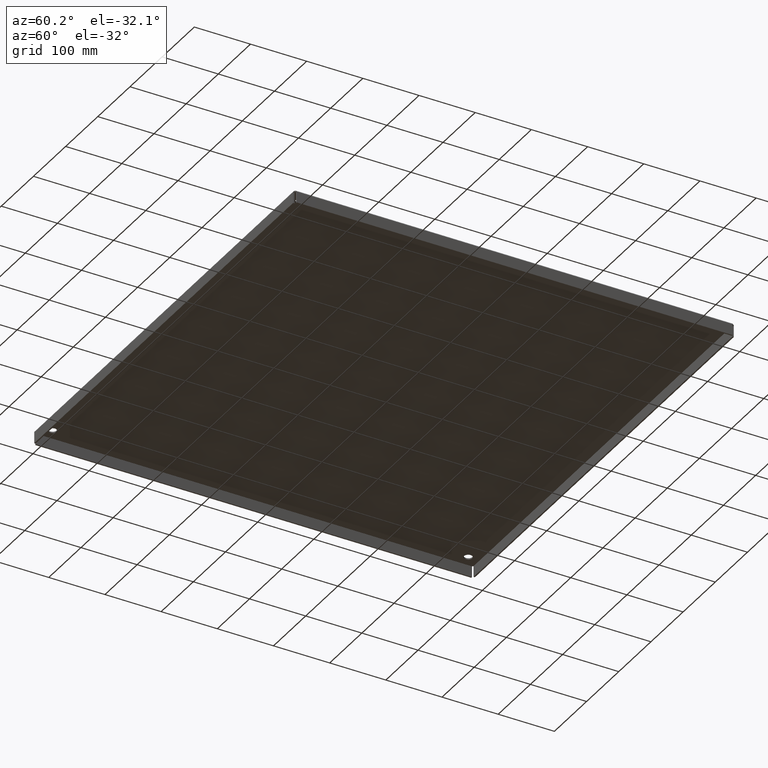
[diagram: clean part render]
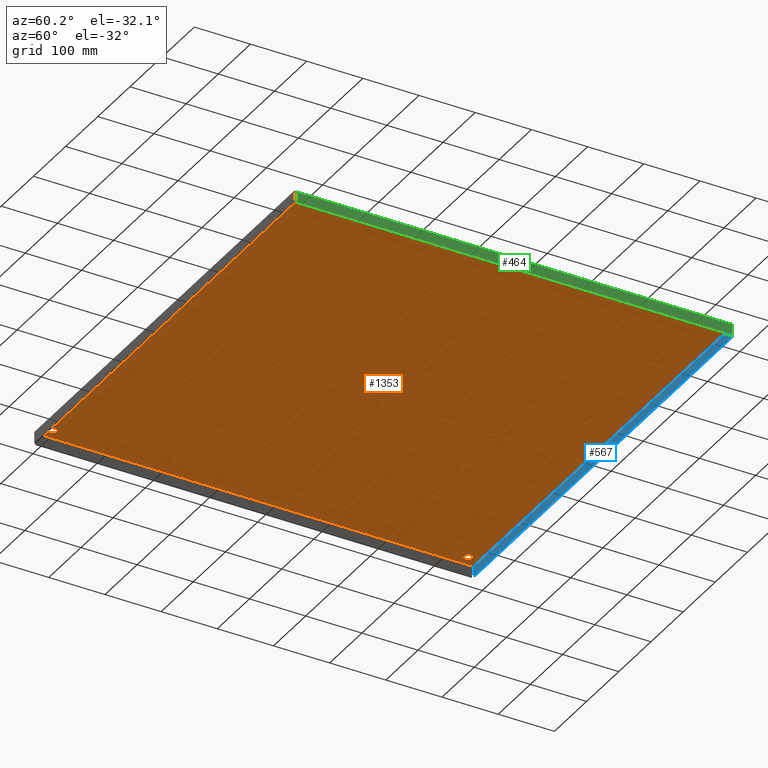
[diagram: same view with three faces highlighted in distinct colors, each labeled with its STEP entity id]
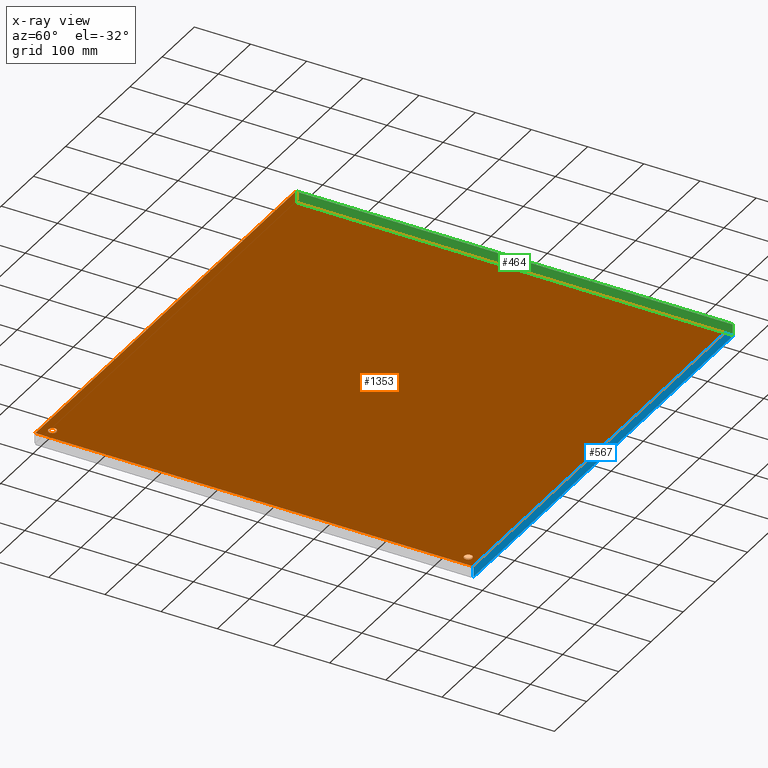
[diagram: x-ray of the same camera — body ghosted, the three highlighted faces saturated]
A machine part, auxiliary view with three faces highlighted in distinct colors.
The next image is the same camera in x-ray (body ghosted, the three faces saturated) — at least one of them is partly hidden behind the body in this view.
Their STEP definitions:

[orange] entity #1353 — the highlighted planar face has unit normal (0, 0, 1).
#90=CARTESIAN_POINT('',(31.406500000000005,30.004999999999988,0.0));
#91=VERTEX_POINT('',#90);
#92=CARTESIAN_POINT('',(31.125000000000004,30.004999999999988,0.0));
#93=DIRECTION('',(0.0,0.0,1.0));
#94=DIRECTION('',(1.0,0.0,0.0));
#95=AXIS2_PLACEMENT_3D('',#92,#93,#94);
#96=CIRCLE('',#95,0.2815);
#97=EDGE_CURVE('',#91,#91,#96,.T.);
#118=CARTESIAN_POINT('',(1.156499999999991,30.004999999999988,0.0));
#119=VERTEX_POINT('',#118);
#120=CARTESIAN_POINT('',(0.874999999999991,30.004999999999988,0.0));
#121=DIRECTION('',(0.0,0.0,1.0));
#122=DIRECTION('',(1.0,0.0,0.0));
#123=AXIS2_PLACEMENT_3D('',#120,#121,#122);
#124=CIRCLE('',#123,0.2815);
#125=EDGE_CURVE('',#119,#119,#124,.T.);
#146=CARTESIAN_POINT('',(1.156499999999976,0.875,0.0));
#147=VERTEX_POINT('',#146);
#148=CARTESIAN_POINT('',(0.874999999999976,0.875,0.0));
#149=DIRECTION('',(0.0,0.0,1.0));
#150=DIRECTION('',(1.0,0.0,0.0));
#151=AXIS2_PLACEMENT_3D('',#148,#149,#150);
#152=CIRCLE('',#151,0.2815);
#153=EDGE_CURVE('',#147,#147,#152,.T.);
#174=CARTESIAN_POINT('',(31.406499999999994,0.875,0.0));
#175=VERTEX_POINT('',#174);
#176=CARTESIAN_POINT('',(31.124999999999993,0.875,0.0));
#177=DIRECTION('',(0.0,0.0,1.0));
#178=DIRECTION('',(1.0,0.0,0.0));
#179=AXIS2_PLACEMENT_3D('',#176,#177,#178);
#180=CIRCLE('',#179,0.2815);
#181=EDGE_CURVE('',#175,#175,#180,.T.);
#333=CARTESIAN_POINT('',(31.890650000000001,0.10935,0.0));
#334=VERTEX_POINT('',#333);
#383=CARTESIAN_POINT('',(31.890649999999997,30.770650000000018,0.0));
#384=VERTEX_POINT('',#383);
#472=CARTESIAN_POINT('',(31.890650000000001,30.770650000000018,0.0));
#473=DIRECTION('',(0.0,-1.0,0.0));
#474=VECTOR('',#473,30.661300000000018);
#475=LINE('',#472,#474);
#476=EDGE_CURVE('',#384,#334,#475,.T.);
#663=CARTESIAN_POINT('',(0.109349999999991,30.77065,0.0));
#664=VERTEX_POINT('',#663);
#752=CARTESIAN_POINT('',(0.109349999999992,30.77065000000001,0.0));
#753=DIRECTION('',(1.0,0.0,0.0));
#754=VECTOR('',#753,31.781300000000005);
#755=LINE('',#752,#754);
#756=EDGE_CURVE('',#664,#384,#755,.T.);
#943=CARTESIAN_POINT('',(0.10935,0.10935,0.0));
#944=VERTEX_POINT('',#943);
#1032=CARTESIAN_POINT('',(0.109350000000001,0.109349999999999,0.0));
#1033=DIRECTION('',(0.0,1.0,0.0));
#1034=VECTOR('',#1033,30.661299999999997);
#1035=LINE('',#1032,#1034);
#1036=EDGE_CURVE('',#944,#664,#1035,.T.);
#1296=CARTESIAN_POINT('',(31.890650000000001,0.10935,0.0));
#1297=DIRECTION('',(-1.0,0.0,0.0));
#1298=VECTOR('',#1297,31.781300000000002);
#1299=LINE('',#1296,#1298);
#1300=EDGE_CURVE('',#334,#944,#1299,.T.);
#1330=CARTESIAN_POINT('',(15.999999999999995,15.440000000000003,0.0));
#1331=DIRECTION('',(0.0,0.0,1.0));
#1332=DIRECTION('',(1.0,0.0,0.0));
#1333=AXIS2_PLACEMENT_3D('',#1330,#1331,#1332);
#1334=PLANE('',#1333);
#1335=ORIENTED_EDGE('',*,*,#476,.T.);
#1336=ORIENTED_EDGE('',*,*,#1300,.T.);
#1337=ORIENTED_EDGE('',*,*,#1036,.T.);
#1338=ORIENTED_EDGE('',*,*,#756,.T.);
#1339=EDGE_LOOP('',(#1335,#1336,#1337,#1338));
#1340=FACE_OUTER_BOUND('',#1339,.T.);
#1341=ORIENTED_EDGE('',*,*,#97,.T.);
#1342=EDGE_LOOP('',(#1341));
#1343=FACE_BOUND('',#1342,.T.);
#1344=ORIENTED_EDGE('',*,*,#125,.T.);
#1345=EDGE_LOOP('',(#1344));
#1346=FACE_BOUND('',#1345,.T.);
#1347=ORIENTED_EDGE('',*,*,#153,.T.);
#1348=EDGE_LOOP('',(#1347));
#1349=FACE_BOUND('',#1348,.T.);
#1350=ORIENTED_EDGE('',*,*,#181,.T.);
#1351=EDGE_LOOP('',(#1350));
#1352=FACE_BOUND('',#1351,.T.);
#1353=ADVANCED_FACE('',(#1340,#1343,#1346,#1349,#1352),#1334,.F.);

[blue] entity #567 — the highlighted planar face has unit normal (-0, 1, 0).
#528=CARTESIAN_POINT('',(15.999999999999993,30.786250000000063,-0.361770140794659));
#529=DIRECTION('',(-9.192950E-016,1.0,1.719974E-013));
#530=DIRECTION('',(1.0,0.0,0.0));
#531=AXIS2_PLACEMENT_3D('',#528,#529,#530);
#532=PLANE('',#531);
#533=CARTESIAN_POINT('',(31.839958739263768,30.786250000000024,-0.015600000000007));
#534=VERTEX_POINT('',#533);
#535=CARTESIAN_POINT('',(0.160041260736222,30.786249999999985,-0.015600000000001));
#536=VERTEX_POINT('',#535);
#537=CARTESIAN_POINT('',(31.839958739263768,30.786250000000017,-0.015599999999996));
#538=DIRECTION('',(-1.0,0.0,0.0));
#539=VECTOR('',#538,31.679917478527543);
#540=LINE('',#537,#539);
#541=EDGE_CURVE('',#534,#536,#540,.T.);
#542=ORIENTED_EDGE('',*,*,#541,.T.);
#543=CARTESIAN_POINT('',(0.160041260736228,30.78625000000012,-0.78125));
#544=VERTEX_POINT('',#543);
#545=CARTESIAN_POINT('',(0.160041260736228,30.786249999999985,-0.015600000000001));
#546=DIRECTION('',(0.0,1.763248E-013,-1.0));
#547=VECTOR('',#546,0.765649999999999);
#548=LINE('',#545,#547);
#549=EDGE_CURVE('',#536,#544,#548,.T.);
#550=ORIENTED_EDGE('',*,*,#549,.T.);
#551=CARTESIAN_POINT('',(31.839958739263757,30.786250000000152,-0.781250000000011));
#552=VERTEX_POINT('',#551);
#553=CARTESIAN_POINT('',(0.160041260736228,30.78625000000012,-0.78125));
#554=DIRECTION('',(1.0,0.0,0.0));
#555=VECTOR('',#554,31.679917478527528);
#556=LINE('',#553,#555);
#557=EDGE_CURVE('',#544,#552,#556,.T.);
#558=ORIENTED_EDGE('',*,*,#557,.T.);
#559=CARTESIAN_POINT('',(31.839958739263757,30.786250000000017,-0.015600000000013));
#560=DIRECTION('',(0.0,1.763248E-013,-1.0));
#561=VECTOR('',#560,0.765649999999999);
#562=LINE('',#559,#561);
#563=EDGE_CURVE('',#534,#552,#562,.T.);
#564=ORIENTED_EDGE('',*,*,#563,.F.);
#565=EDGE_LOOP('',(#542,#550,#558,#564));
#566=FACE_OUTER_BOUND('',#565,.T.);
#567=ADVANCED_FACE('',(#566),#532,.F.);

[green] entity #464 — the highlighted planar face has unit normal (1, 0, 0).
#191=CARTESIAN_POINT('',(32.0,30.719958739263781,-0.015599999999973));
#192=VERTEX_POINT('',#191);
#193=CARTESIAN_POINT('',(32.000000000000021,0.160041260736237,-0.015599999999985));
#194=VERTEX_POINT('',#193);
#195=CARTESIAN_POINT('',(31.999999999999996,30.719958739263781,-0.015599999999985));
#196=DIRECTION('',(0.0,-1.0,0.0));
#197=VECTOR('',#196,30.559917478527545);
#198=LINE('',#195,#197);
#199=EDGE_CURVE('',#192,#194,#198,.T.);
#279=CARTESIAN_POINT('',(32.000000000000071,0.160041260736234,-0.781249999999989));
#280=VERTEX_POINT('',#279);
#281=CARTESIAN_POINT('',(32.000000000000071,0.160041260736234,-0.781249999999989));
#282=DIRECTION('',(0.0,0.0,1.0));
#283=VECTOR('',#282,0.765649999999999);
#284=LINE('',#281,#283);
#285=EDGE_CURVE('',#280,#194,#284,.T.);
#417=CARTESIAN_POINT('',(32.00000000000005,30.719958739263781,-0.781249999999972));
#418=VERTEX_POINT('',#417);
#419=CARTESIAN_POINT('',(32.0,30.719958739263781,-0.015599999999973));
#420=DIRECTION('',(0.0,0.0,-1.0));
#421=VECTOR('',#420,0.765649999999999);
#422=LINE('',#419,#421);
#423=EDGE_CURVE('',#192,#418,#422,.T.);
#441=CARTESIAN_POINT('',(32.00000000000005,30.719958739263781,-0.781249999999972));
#442=DIRECTION('',(0.0,-1.0,0.0));
#443=VECTOR('',#442,30.559917478527549);
#444=LINE('',#441,#443);
#445=EDGE_CURVE('',#418,#280,#444,.T.);
#453=CARTESIAN_POINT('',(32.000000000000028,15.440000000000005,-0.361740214942212));
#454=DIRECTION('',(1.0,0.0,0.0));
#455=DIRECTION('',(0.0,0.0,-1.0));
#456=AXIS2_PLACEMENT_3D('',#453,#454,#455);
#457=PLANE('',#456);
#458=ORIENTED_EDGE('',*,*,#199,.T.);
#459=ORIENTED_EDGE('',*,*,#285,.F.);
#460=ORIENTED_EDGE('',*,*,#445,.F.);
#461=ORIENTED_EDGE('',*,*,#423,.F.);
#462=EDGE_LOOP('',(#458,#459,#460,#461));
#463=FACE_OUTER_BOUND('',#462,.T.);
#464=ADVANCED_FACE('',(#463),#457,.T.);